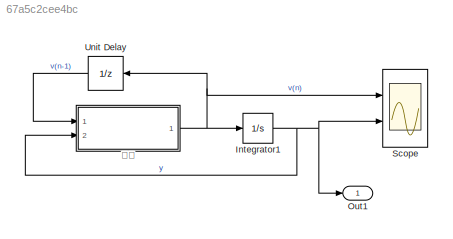
MODEL slx_67a5c2cee4bc
KIND model
CONFIG AbsTol = auto
CONFIG EnableMultiTasking = off
CONFIG FixedStep = 0.001
CONFIG MaxStep = 0.001
CONFIG MinStep = auto
CONFIG RelTol = 1e-3
CONFIG SampleTimeConstraint = Unconstrained
CONFIG Solver = FixedStepAuto
CONFIG SolverName = FixedStepAuto
CONFIG StartTime = 0.0
CONFIG StopTime = 10.0
BLOCK [Integrator] Integrator1
  InitialCondition = 1
  Ports = [1, 1]
BLOCK [Outport] Out1
  IconDisplay = Port number
BLOCK [Scope] Scope
  Floating = off
  NumInputPorts = 2
  Ports = [2]
  ScopeSpecificationString = Simulink.scopes.TimeScopeBlockCfg('CurrentConfiguration', extmgr.ConfigurationSet(extmgr.Configuration('Core','General UI',true),extmgr.Configuration('Core','Source UI',true),extmgr.Configuration('Sources','WiredSimulink',true),extmgr.Configuration('Visuals','Time Domain',true,'SerializedDisplays',{struct('MinYLimReal','-5.42374','MaxYLimReal','4.53723','YLabelReal','','MinYLimMag','0.00000','MaxY...<+1943ch>
BLOCK [UnitDelay] Unit Delay
  InputProcessing = Elements as channels (sample based)
  SampleTime = dt
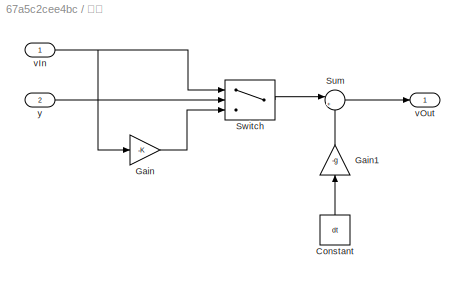
BLOCK [SubSystem] 碰撞
  Ports = [2, 1]
  RequestExecContextInheritance = off
BLOCK [Constant] 碰撞/Constant
  Value = dt
BLOCK [Gain] 碰撞/Gain
  Gain = -K
  OutDataTypeStr = Inherit: Inherit via internal rule
  ParamDataTypeStr = Inherit: Inherit via internal rule
  SaturateOnIntegerOverflow = off
BLOCK [Gain] 碰撞/Gain1
  Gain = -g
  OutDataTypeStr = Inherit: Inherit via internal rule
  ParamDataTypeStr = Inherit: Inherit via internal rule
  SaturateOnIntegerOverflow = off
BLOCK [Sum] 碰撞/Sum
  IconShape = round
  InputSameDT = off
  Inputs = |++
  OutDataTypeStr = Inherit: Inherit via internal rule
  Ports = [2, 1]
  SaturateOnIntegerOverflow = off
BLOCK [Switch] 碰撞/Switch
  Criteria = u2 > Threshold
  InputSameDT = off
  SaturateOnIntegerOverflow = off
BLOCK [Inport] 碰撞/vIn
  IconDisplay = Port number
BLOCK [Outport] 碰撞/vOut
  IconDisplay = Port number
BLOCK [Inport] 碰撞/y
  IconDisplay = Port number
  Port = 2
NET Integrator1:1 -> Out1:1, Scope:2, 碰撞:2
LINE Unit Delay:1 -> 碰撞:1
LINE 碰撞/Constant:1 -> 碰撞/Gain1:1
LINE 碰撞/Gain1:1 -> 碰撞/Sum:2
LINE 碰撞/Gain:1 -> 碰撞/Switch:3
LINE 碰撞/Sum:1 -> 碰撞/vOut:1
LINE 碰撞/Switch:1 -> 碰撞/Sum:1
NET 碰撞/vIn:1 -> 碰撞/Gain:1, 碰撞/Switch:1
LINE 碰撞/y:1 -> 碰撞/Switch:2
NET 碰撞:1 -> Integrator1:1, Scope:1, Unit Delay:1
note: NET lines group one-source signal fan-out (src -> all destinations, sorted); 1:1 wires keep LINE
